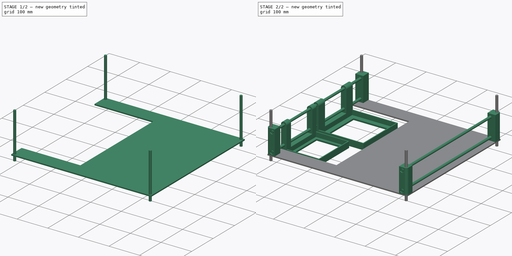
[diagram: build sequence overview — one tinted view per stage of 2, left to right]
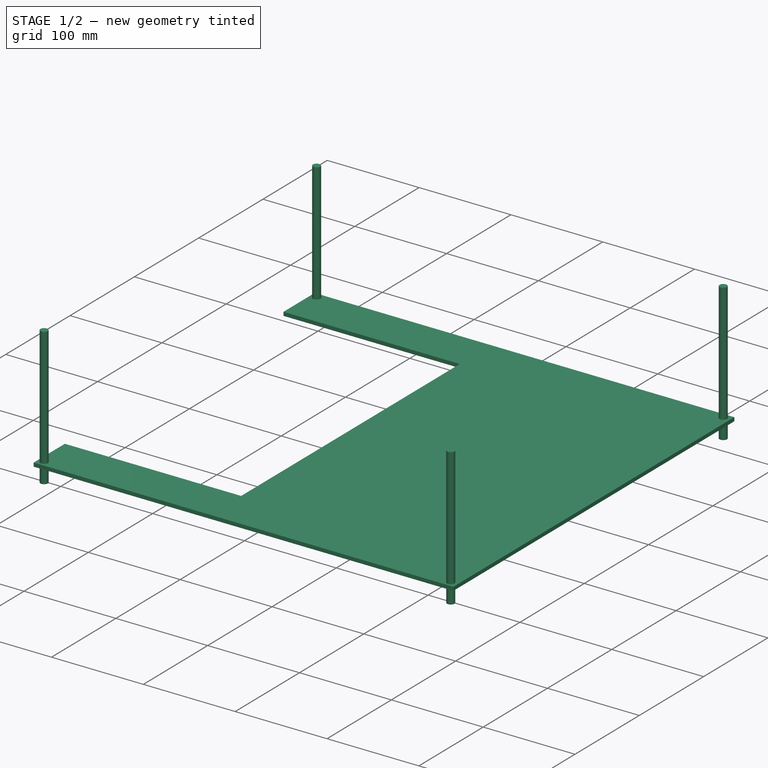
[diagram: stage 1 of 2 — iso view after this stage's code; geometry added in this stage tinted green]
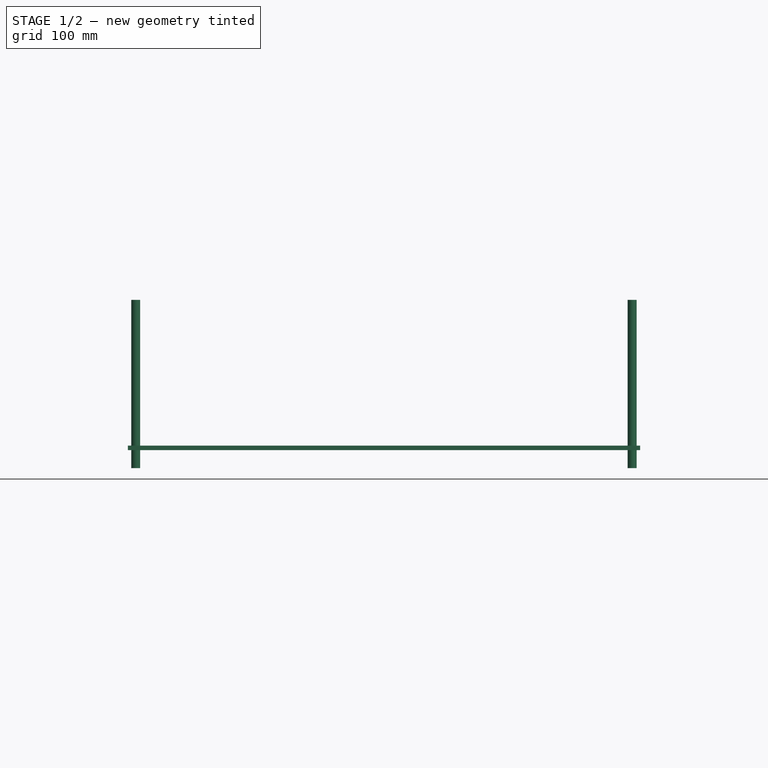
[diagram: stage 1 of 2 — front view after this stage's code; geometry added in this stage tinted green]
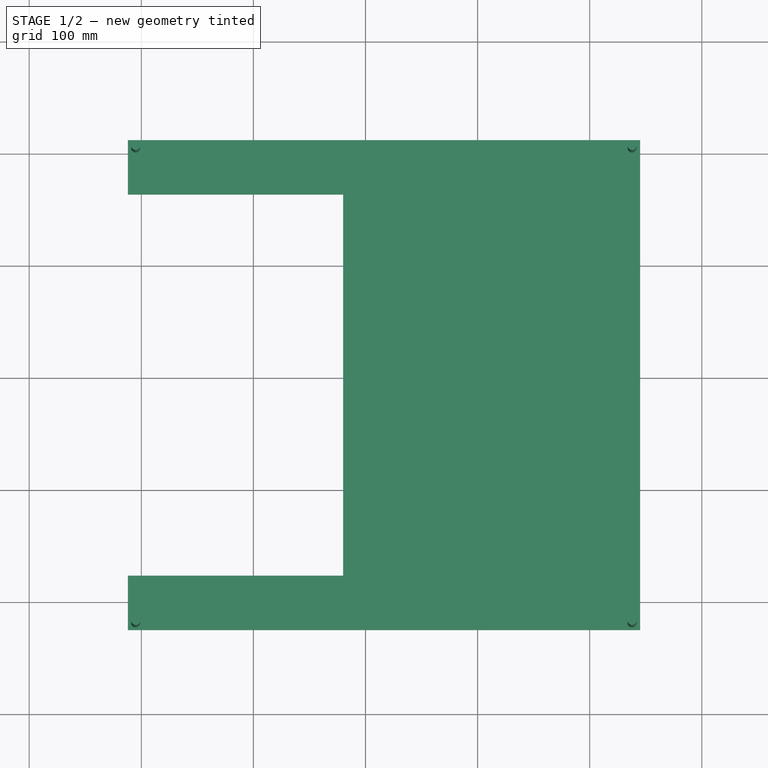
[diagram: stage 1 of 2 — top view after this stage's code; geometry added in this stage tinted green]
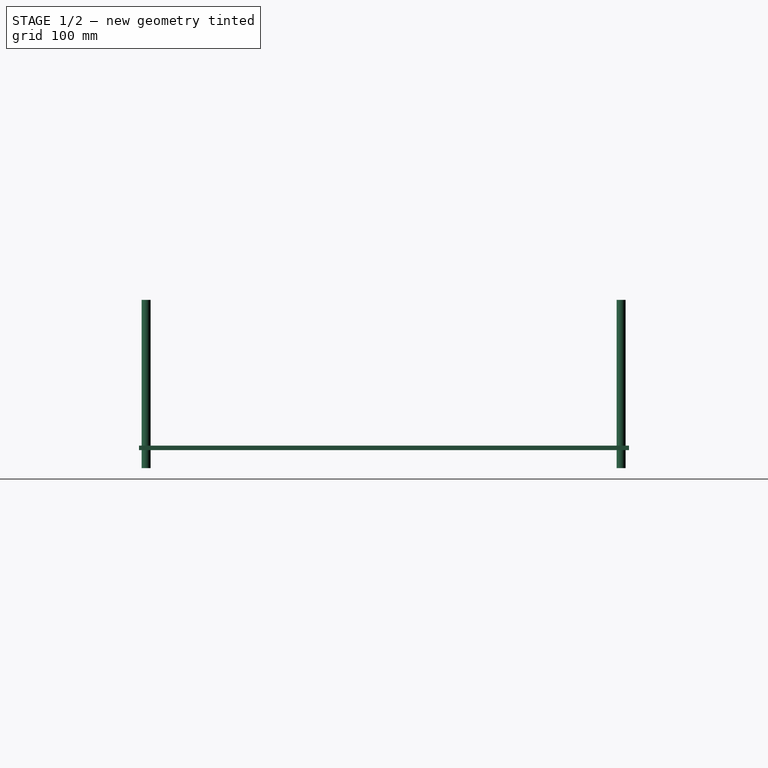
[diagram: stage 1 of 2 — right view after this stage's code; geometry added in this stage tinted green]
FCSTD DOCUMENT  (FreeCAD 0.16R6707 (Git))
Label: BottomFrame
License: All rights reserved
LicenseURL: http://en.wikipedia.org/wiki/All_rights_reserved
objects: Part::Feature×6, Sketcher::SketchObject×3, PartDesign::Pad×3, Part::MultiFuse×1
note: 16 computed .brp shape members not serialized (recipe doc carries the construction recipe); baked Part::Feature solids carry a one-line shape summary decoded from their .brp

FEATURE [Sketcher::SketchObject] Sketch017
  Placement = pos=(201.8,-74.9,-20) rot=(0,0,1;0rad)
  sketch-geometry (4):
    g0: Circle CenterX=-206.8 CenterY=279.9 CenterZ=0 NormalX=0 NormalY=0 NormalZ=1 Radius=4
    g1: Circle CenterX=236 CenterY=279.9 CenterZ=0 NormalX=0 NormalY=0 NormalZ=1 Radius=4
    g2: Circle CenterX=-206.8 CenterY=-143.8 CenterZ=0 NormalX=0 NormalY=0 NormalZ=1 Radius=4
    g3: Circle CenterX=236 CenterY=-143.8 CenterZ=0 NormalX=0 NormalY=0 NormalZ=1 Radius=4
  constraints (12):
    c: Radius(g1) = 4
    c: Equal(g1,g0)
    c: DistanceY(g1,g0) = 0
    c: DistanceX(g0,g1) = 442.8
    c: DistanceX(g0,g-1) = 206.8
    c: DistanceY(g-1,g0) = 279.9
    c: Radius(g2) = 4
    c: Equal(g2,g3)
    c: DistanceX(g2,g-1) = 206.8
    c: DistanceX(g2,g3) = 442.8
    c: DistanceY(g3,g2) = 0
    c: DistanceY(g3,g-1) = 143.8
FEATURE [PartDesign::Pad] Pad017  label="CasingRodsBack"
  Length = 150
  Length2 = 100
  Placement = pos=(201.8,-74.9,-20) rot=(0,0,1;0rad)
  Sketch = -> Sketch017
  Type = 0
FEATURE [Sketcher::SketchObject] Sketch
  Placement = pos=(0,0,-4) rot=(0,0,1;0rad)
  sketch-geometry (12):
    g0: LineSegment StartX=-12 StartY=212 StartZ=0 EndX=445 EndY=212 EndZ=0
    g1: LineSegment StartX=445 StartY=212 StartZ=0 EndX=445 EndY=-225 EndZ=0
    g2: LineSegment StartX=445 StartY=-225 StartZ=0 EndX=-12 EndY=-225 EndZ=0
    g3: LineSegment StartX=-12 StartY=-225 StartZ=0 EndX=-12 EndY=-176.5 EndZ=0
    g4: LineSegment StartX=-12 StartY=-176.5 StartZ=0 EndX=180 EndY=-176.5 EndZ=0
    g5: LineSegment StartX=180 StartY=-176.5 StartZ=0 EndX=180 EndY=163.5 EndZ=0
    g6: LineSegment StartX=180 StartY=163.5 StartZ=0 EndX=-12 EndY=163.5 EndZ=0
    g7: LineSegment StartX=-12 StartY=163.5 StartZ=0 EndX=-12 EndY=212 EndZ=0
    g8: Circle CenterX=-5 CenterY=-218.7 CenterZ=0 NormalX=0 NormalY=0 NormalZ=1 Radius=4
    g9: Circle CenterX=437.8 CenterY=-218.7 CenterZ=0 NormalX=0 NormalY=0 NormalZ=1 Radius=4
    g10: Circle CenterX=437.8 CenterY=205 CenterZ=0 NormalX=0 NormalY=0 NormalZ=1 Radius=4
    g11: Circle CenterX=-5 CenterY=205 CenterZ=0 NormalX=0 NormalY=0 NormalZ=1 Radius=4
  constraints (37):
    c: Horizontal(g0)
    c: Coincident(g0,g1)
    c: Vertical(g1)
    c: Coincident(g1,g2)
    c: Horizontal(g2)
    c: Coincident(g2,g3)
    c: Vertical(g3)
    c: Coincident(g3,g4)
    c: Horizontal(g4)
    c: Coincident(g4,g5)
    c: Vertical(g5)
    c: Coincident(g5,g6)
    c: Horizontal(g6)
    c: Coincident(g6,g7)
    c: Coincident(g7,g0)
    c: Vertical(g7)
    c: Equal(g6,g4)
    c: Equal(g0,g2)
    c: Equal(g3,g7)
    c: DistanceX(g-1,g5) = 180
    c: DistanceX(g-1,g0) = 445
    c: DistanceY(g1,g1) = 437
    c: DistanceY(g-1,g0) = 212
    c: DistanceX(g3,g-1) = 12
    c: DistanceY(g5,g5) = 340
    c: Radius(g11) = 4
    c: Equal(g11,g8)
    c: Equal(g11,g9)
    c: Equal(g11,g10)
    c: DistanceX(g11,g-1) = 5
    c: DistanceY(g-1,g11) = 205
    c: DistanceY(g10,g11) = 0
    c: DistanceX(g-1,g10) = 437.8
    c: DistanceX(g8,g-1) = 5
    c: DistanceY(g8,g9) = 0
    c: DistanceX(g9,g10) = 0
    c: DistanceY(g8,g-1) = 218.7
FEATURE [PartDesign::Pad] Pad  label="Plexi"
  Length = 4
  Length2 = 100
  Placement = pos=(0,0,-4) rot=(0,0,1;0rad)
  Sketch = -> Sketch
  Type = 0
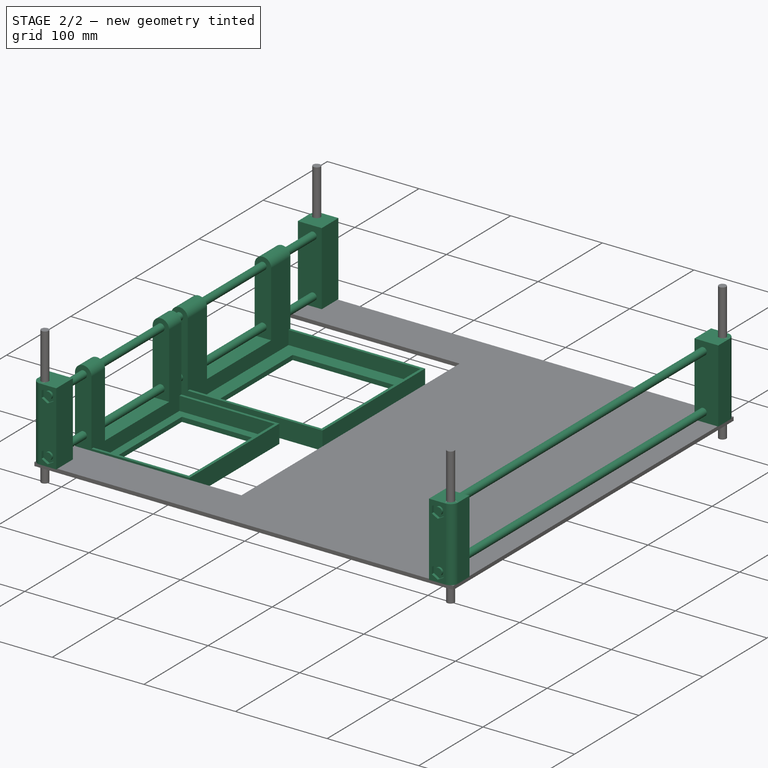
[diagram: stage 2 of 2 — iso view after this stage's code; geometry added in this stage tinted green]
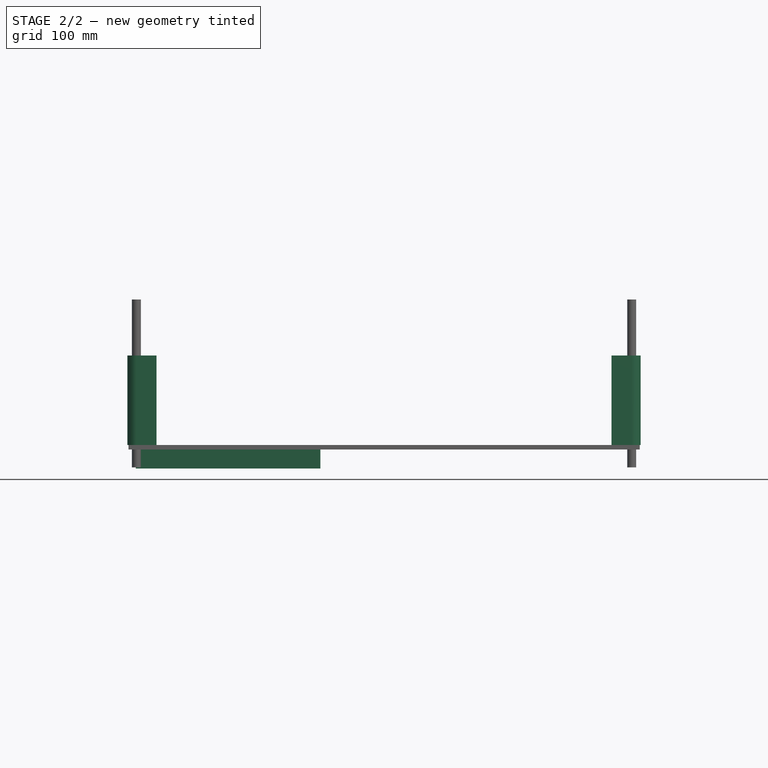
[diagram: stage 2 of 2 — front view after this stage's code; geometry added in this stage tinted green]
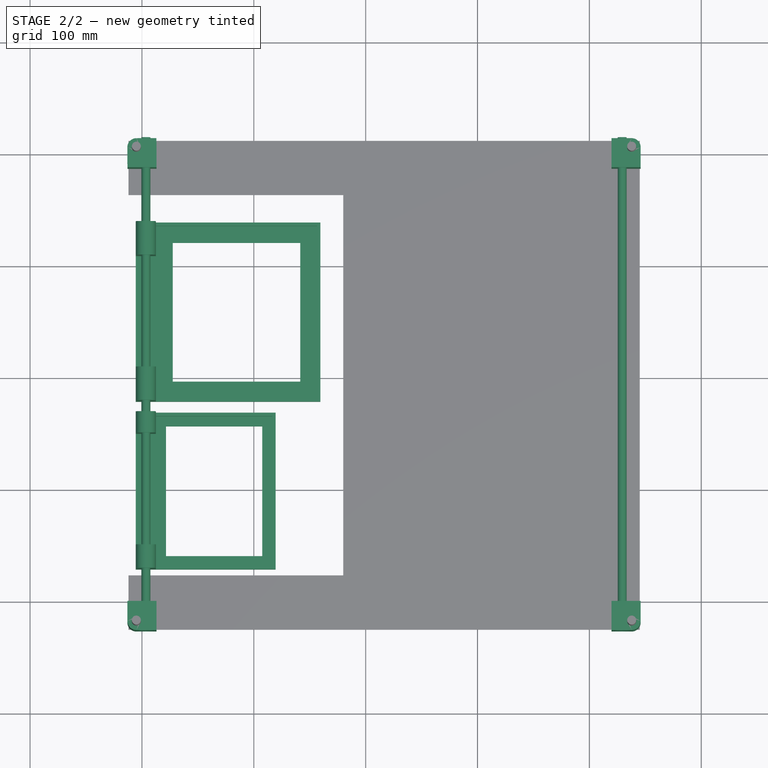
[diagram: stage 2 of 2 — top view after this stage's code; geometry added in this stage tinted green]
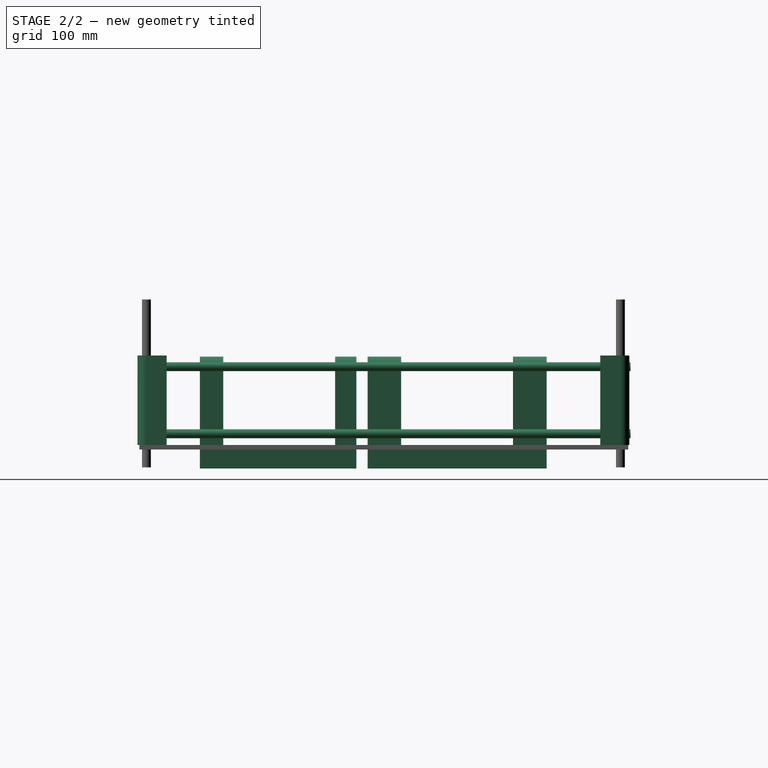
[diagram: stage 2 of 2 — right view after this stage's code; geometry added in this stage tinted green]
FEATURE [Part::Feature] Part__Feature  label="PCB"
  Placement = pos=(86,-100,-21) rot=(0,0,1;0rad)
  shape: bbox 125 x 140 x 100 mm, 24 faces (baked)
FEATURE [Part::Feature] Part__Feature001  label="Cut"
  Placement = pos=(432.8,-213.7,80) rot=(0.707107,0.707107,0;3.14159rad)
  shape: bbox 26 x 26 x 80 mm, 24 faces (baked)
FEATURE [Part::Feature] Part__Feature002  label="PSU"
  Placement = pos=(86,50,-21) rot=(0,0,1;0rad)
  shape: bbox 165 x 160 x 100 mm, 24 faces (baked)
FEATURE [Part::Feature] Part__Feature003  label="Cut003"
  Placement = pos=(0,-213.7,0) rot=(0,0,1;1.5708rad)
  shape: bbox 26 x 26 x 80 mm, 24 faces (baked)
FEATURE [Part::Feature] Part__Feature004  label="Cut004"
  Placement = pos=(0,200,80) rot=(0.708549,-0.705662,0;3.14159rad)
  shape: bbox 26.07 x 26.11 x 80 mm, 24 faces (baked)
FEATURE [Part::Feature] Part__Feature005  label="Cut005"
  Placement = pos=(432.8,200,0) rot=(0,0,-1;1.5708rad)
  shape: bbox 26 x 26 x 80 mm, 24 faces (baked)
FEATURE [Sketcher::SketchObject] Sketch009
  Placement = pos=(194.8,-6,35) rot=(1,0,0;1.5708rad)
  sketch-geometry (4):
    g0: Circle CenterX=234.5 CenterY=35 CenterZ=0 NormalX=0 NormalY=0 NormalZ=1 Radius=4
    g1: Circle CenterX=234.5 CenterY=-25 CenterZ=0 NormalX=0 NormalY=0 NormalZ=1 Radius=4
    g2: Circle CenterX=-191.3 CenterY=35 CenterZ=0 NormalX=0 NormalY=0 NormalZ=1 Radius=4
    g3: Circle CenterX=-191.3 CenterY=-25 CenterZ=0 NormalX=0 NormalY=0 NormalZ=1 Radius=4
  constraints (12):
    c: Radius(g3) = 4
    c: Equal(g3,g2)
    c: Equal(g3,g1)
    c: Equal(g3,g0)
    c: DistanceX(g0,g1) = 0
    c: DistanceY(g-1,g0) = 35
    c: DistanceY(g1,g0) = 60
    c: DistanceX(g-1,g0) = 234.5
    c: DistanceY(g2,g0) = 0
    c: DistanceX(g3,g2) = 0
    c: DistanceY(g3,g2) = 60
    c: DistanceX(g2,g0) = 425.8
FEATURE [PartDesign::Pad] Pad009  label="FrameRods001"
  Length = 440
  Length2 = 100
  Midplane = true
  Placement = pos=(194.8,-6,35) rot=(1,0,0;1.5708rad)
  Sketch = -> Sketch009
  Type = 0
FEATURE [Part::MultiFuse] Fusion
  Shapes = -> [Part__Feature,Part__Feature001,Part__Feature002,Part__Feature003,Part__Feature004,Part__Feature005,Pad009,Pad017,Pad]
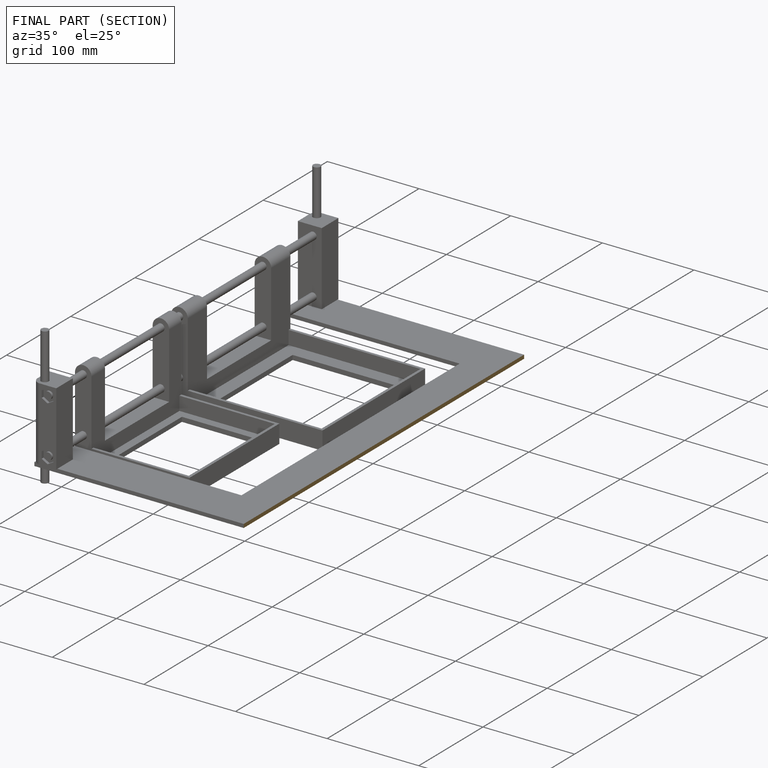
[diagram: finished part — half-section view (interior)]
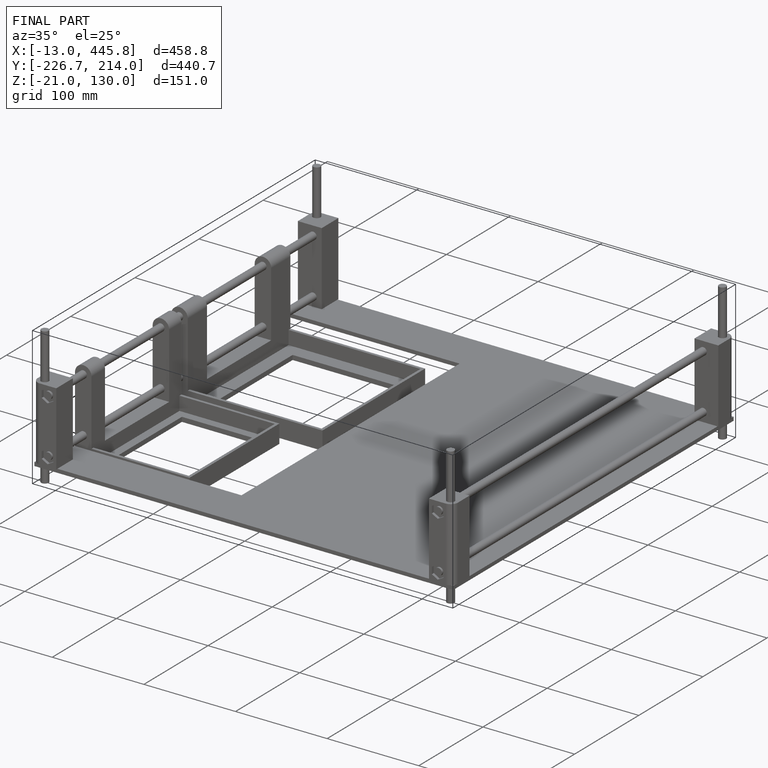
[diagram: finished part — iso view with bounding-box wireframe]
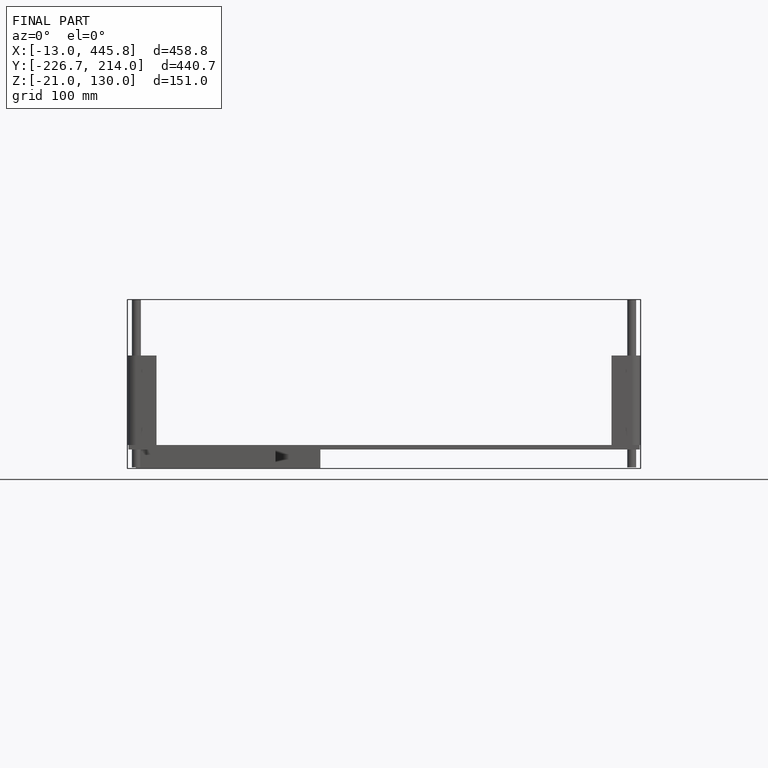
[diagram: finished part — front view with bounding-box wireframe]
